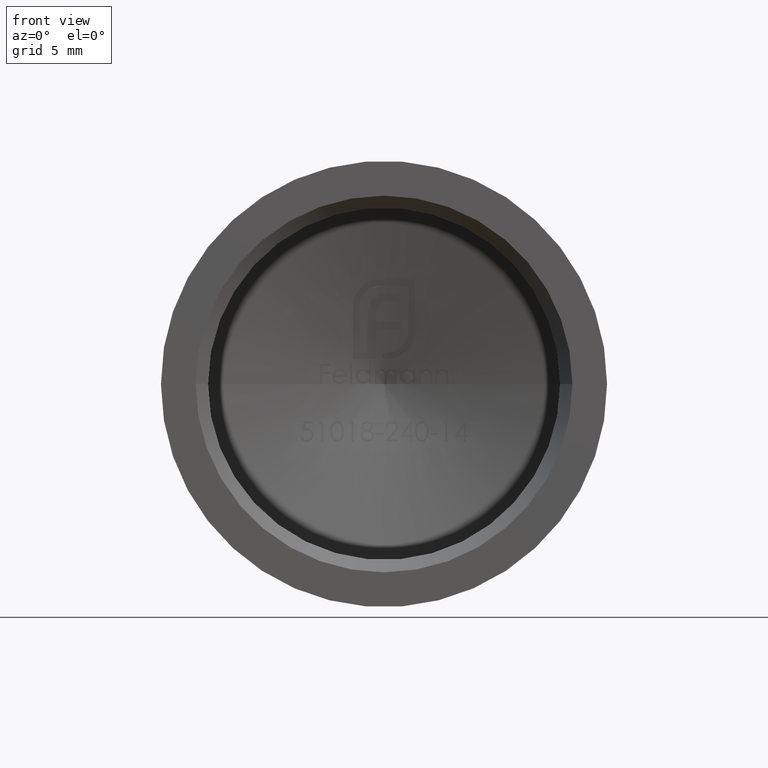
[diagram: clean part render]
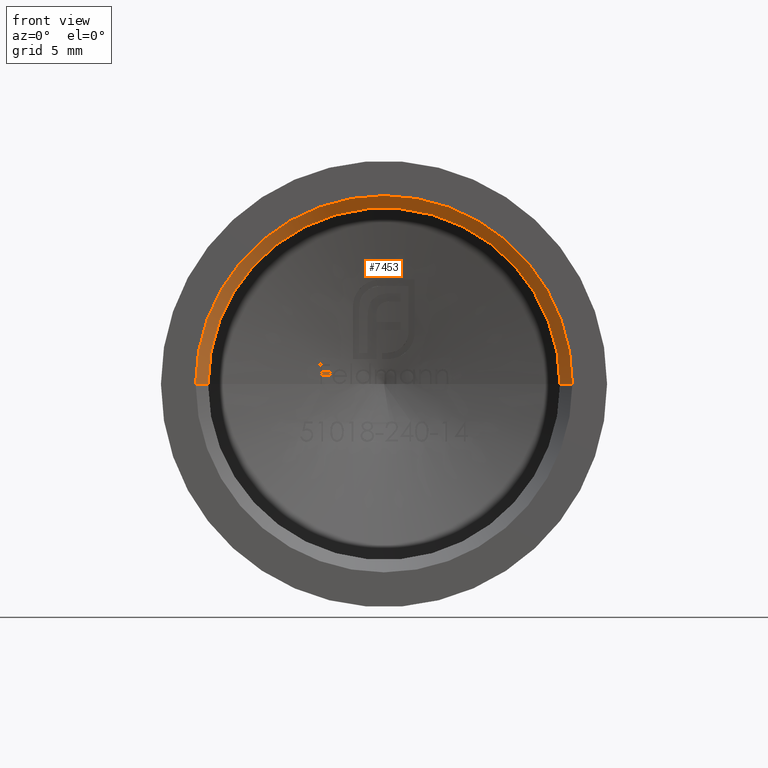
[diagram: same view with one face highlighted and labeled with its STEP entity id]
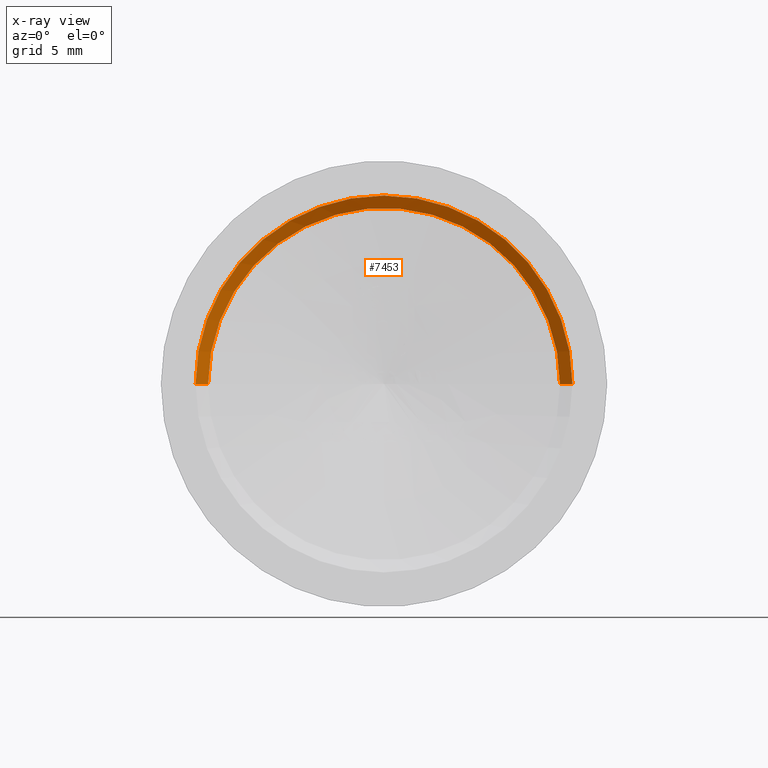
[diagram: x-ray of the same camera — body ghosted, the highlighted face saturated]
A machine part, front view. The second image highlights one B-rep face of the part: STEP entity #7453.
The next image is the same camera in x-ray: the body ghosted, the highlighted face saturated — about 0% of this face is hidden behind the body in this view.
In plain terms, the highlighted conical surface has half-angle 45 deg.
Its self-contained STEP definition (entity closure, byte-faithful):
#1188 = EDGE_CURVE ( 'NONE', #10501, #10511, #4936, .T. ) ;
#1402 = VERTEX_POINT ( 'NONE', #5672 ) ;
#1502 = AXIS2_PLACEMENT_3D ( 'NONE', #5659, #10985, #3503 ) ;
#2737 = DIRECTION ( 'NONE',  ( 1.000000000000000000, -1.527045313359865600E-17, 0.000000000000000000 ) ) ;
#2991 = LINE ( 'NONE', #8955, #12690 ) ;
#3165 = VERTEX_POINT ( 'NONE', #4750 ) ;
#3223 = VECTOR ( 'NONE', #12085, 1000.000000000000114 ) ;
#3503 = DIRECTION ( 'NONE',  ( 1.000000000000000000, -1.527045313359865600E-17, 0.000000000000000000 ) ) ;
#4468 = EDGE_LOOP ( 'NONE', ( #7526, #13980, #11057, #9532 ) ) ;
#4750 = CARTESIAN_POINT ( 'NONE',  ( -7.099999999999998757, 0.4999999999999936162, 8.694992273946205774E-16 ) ) ;
#4936 = LINE ( 'NONE', #11011, #3223 ) ;
#4966 = DIRECTION ( 'NONE',  ( 1.556407531961289385E-17, 1.000000000000000000, 0.000000000000000000 ) ) ;
#5250 = CARTESIAN_POINT ( 'NONE',  ( 7.099999999999998757, 0.4999999999999933942, 0.000000000000000000 ) ) ;
#5520 = CIRCLE ( 'NONE', #9739, 7.599999999999995204 ) ;
#5659 = CARTESIAN_POINT ( 'NONE',  ( -2.256790921343870471E-16, 0.4999999999999935052, 0.000000000000000000 ) ) ;
#5672 = CARTESIAN_POINT ( 'NONE',  ( -7.599999999999995204, 2.398342575671710789E-16, 9.307315673519877571E-16 ) ) ;
#5897 = EDGE_CURVE ( 'NONE', #3165, #1402, #2991, .T. ) ;
#7453 = ADVANCED_FACE ( 'NONE', ( #8959 ), #14046, .F. ) ;
#7526 = ORIENTED_EDGE ( 'NONE', *, *, #5897, .F. ) ;
#7625 = EDGE_CURVE ( 'NONE', #10501, #3165, #12153, .T. ) ;
#8149 = DIRECTION ( 'NONE',  ( 1.000000000000000000, -1.556407531961289385E-17, 0.000000000000000000 ) ) ;
#8222 = DIRECTION ( 'NONE',  ( -1.556407531961290926E-17, -1.000000000000000000, 0.000000000000000000 ) ) ;
#8380 = CARTESIAN_POINT ( 'NONE',  ( 7.599999999999995204, 2.299382307007014893E-17, 0.000000000000000000 ) ) ;
#8955 = CARTESIAN_POINT ( 'NONE',  ( -7.099999999999998757, 0.4999999999999936162, 8.694992273946205774E-16 ) ) ;
#8959 = FACE_OUTER_BOUND ( 'NONE', #4468, .T. ) ;
#9244 = CARTESIAN_POINT ( 'NONE',  ( -2.256790921343870471E-16, 0.4999999999999935052, 0.000000000000000000 ) ) ;
#9532 = ORIENTED_EDGE ( 'NONE', *, *, #9544, .F. ) ;
#9544 = EDGE_CURVE ( 'NONE', #1402, #10511, #5520, .T. ) ;
#9739 = AXIS2_PLACEMENT_3D ( 'NONE', #11431, #4966, #8149 ) ;
#10501 = VERTEX_POINT ( 'NONE', #5250 ) ;
#10511 = VERTEX_POINT ( 'NONE', #8380 ) ;
#10985 = DIRECTION ( 'NONE',  ( -1.556407531961290926E-17, -1.000000000000000000, 0.000000000000000000 ) ) ;
#11011 = CARTESIAN_POINT ( 'NONE',  ( 7.099999999999998757, 0.4999999999999933942, 0.000000000000000000 ) ) ;
#11057 = ORIENTED_EDGE ( 'NONE', *, *, #1188, .T. ) ;
#11431 = CARTESIAN_POINT ( 'NONE',  ( -2.334611297941933831E-16, 1.314140403186205862E-16, 0.000000000000000000 ) ) ;
#12085 = DIRECTION ( 'NONE',  ( 0.7071067811865493491, -0.7071067811865456854, 0.000000000000000000 ) ) ;
#12153 = CIRCLE ( 'NONE', #1502, 7.099999999999998757 ) ;
#12209 = DIRECTION ( 'NONE',  ( -0.7071067811865493491, -0.7071067811865456854, 8.659560562354957510E-17 ) ) ;
#12421 = AXIS2_PLACEMENT_3D ( 'NONE', #9244, #8222, #2737 ) ;
#12690 = VECTOR ( 'NONE', #12209, 1000.000000000000114 ) ;
#13980 = ORIENTED_EDGE ( 'NONE', *, *, #7625, .F. ) ;
#14046 = CONICAL_SURFACE ( 'NONE', #12421, 7.099999999999998757, 0.7853981633974509435 ) ;